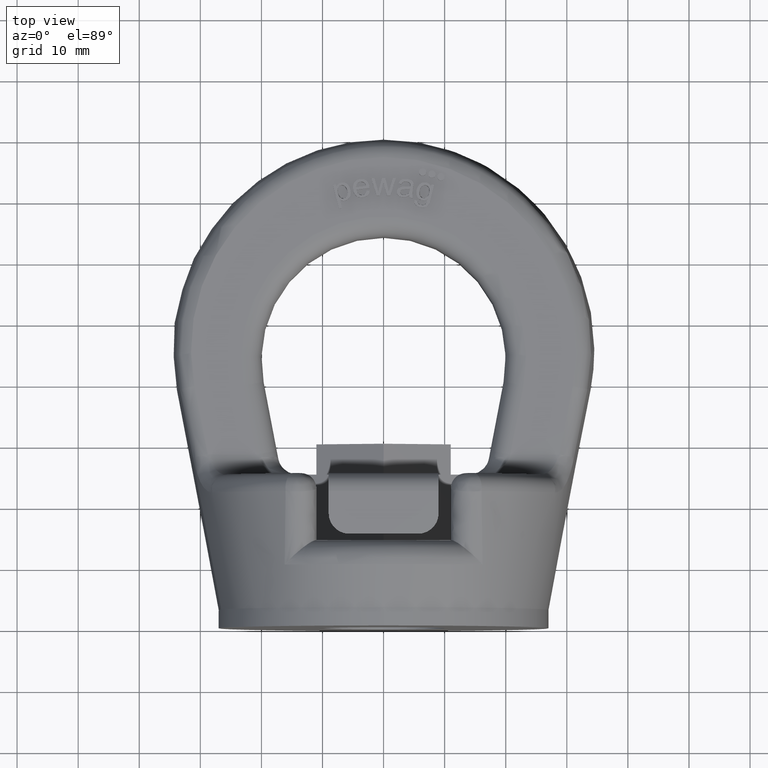
[diagram: clean part render]
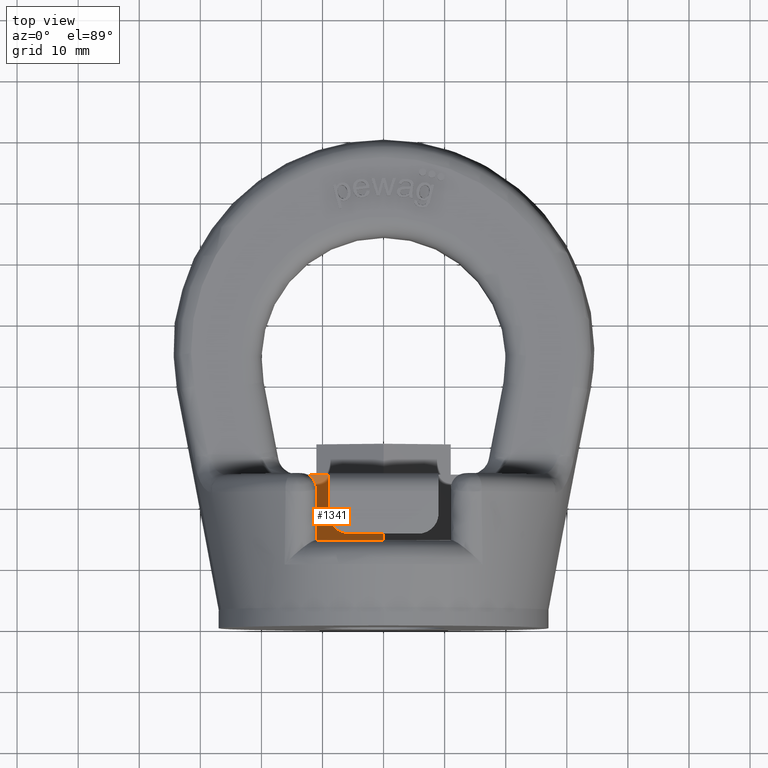
[diagram: same view with one face highlighted and labeled with its STEP entity id]
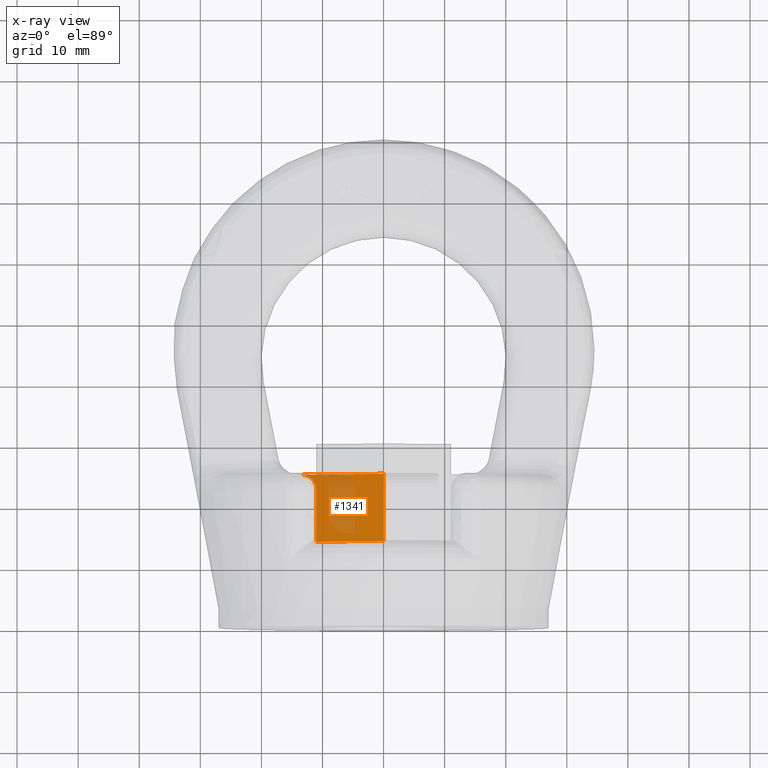
[diagram: x-ray of the same camera — body ghosted, the highlighted face saturated]
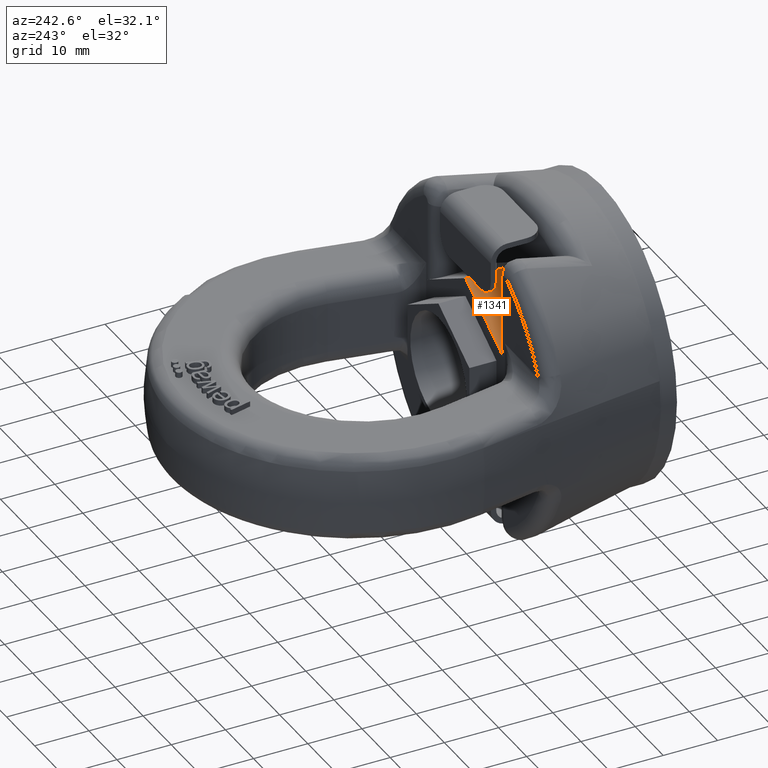
[diagram: same view with one face highlighted and labeled with its STEP entity id]
A machine part, top view. The second image highlights one B-rep face of the part: STEP entity #1341.
The next image is the same camera in x-ray: the body ghosted, the highlighted face saturated — about 32% of this face is hidden behind the body in this view.
A second angle (auxiliary view) of the same face is appended — the face is thin or edge-on in the first view.
In plain terms, the highlighted planar face has unit normal (-0.5, 0, 0.866).
Its self-contained STEP definition (entity closure, byte-faithful):
#1053=ELLIPSE('',#5150,2.88675134594813,2.5);
#1117=FACE_OUTER_BOUND('',#1859,.T.);
#1341=ADVANCED_FACE('',(#1117),#1577,.T.);
#1577=PLANE('',#5151);
#1859=EDGE_LOOP('',(#2869,#2870,#2871,#2872,#2873));
#2131=LINE('',#6530,#2401);
#2136=LINE('',#6561,#2406);
#2152=LINE('',#6792,#2422);
#2178=LINE('',#6889,#2448);
#2401=VECTOR('',#5416,1.);
#2406=VECTOR('',#5425,1.);
#2422=VECTOR('',#5487,1.);
#2448=VECTOR('',#5545,1.);
#2869=ORIENTED_EDGE('',*,*,#4367,.F.);
#2870=ORIENTED_EDGE('',*,*,#4403,.T.);
#2871=ORIENTED_EDGE('',*,*,#4309,.T.);
#2872=ORIENTED_EDGE('',*,*,#4318,.T.);
#2873=ORIENTED_EDGE('',*,*,#4401,.T.);
#3925=VERTEX_POINT('',#6531);
#3926=VERTEX_POINT('',#6532);
#3933=VERTEX_POINT('',#6560);
#3979=VERTEX_POINT('',#6791);
#3980=VERTEX_POINT('',#6793);
#4309=EDGE_CURVE('',#3925,#3926,#2131,.T.);
#4318=EDGE_CURVE('',#3926,#3933,#2136,.T.);
#4367=EDGE_CURVE('',#3979,#3980,#2152,.T.);
#4401=EDGE_CURVE('',#3933,#3980,#2178,.T.);
#4403=EDGE_CURVE('',#3979,#3925,#1053,.T.);
#5150=AXIS2_PLACEMENT_3D('',#6892,#5550,#5551);
#5151=AXIS2_PLACEMENT_3D('',#6893,#5552,#5553);
#5416=DIRECTION('',(0.,-1.,0.));
#5425=DIRECTION('',(0.866025403784439,1.36574054430651E-16,0.499999999999999));
#5487=DIRECTION('',(0.866025403784439,0.,0.499999999999999));
#5545=DIRECTION('',(0.,1.,0.));
#5550=DIRECTION('',(0.499999999999999,0.,-0.866025403784439));
#5551=DIRECTION('',(0.866025403784439,0.,0.499999999999999));
#5552=DIRECTION('',(-0.499999999999999,0.,0.866025403784439));
#5553=DIRECTION('',(0.866025403784439,0.,0.499999999999999));
#6530=CARTESIAN_POINT('',(-11.,25.,9.81495457622363));
#6531=CARTESIAN_POINT('',(-11.,22.5,9.81495457622363));
#6532=CARTESIAN_POINT('',(-11.,14.,9.81495457622363));
#6560=CARTESIAN_POINT('',(-6.50521303491303E-16,14.,16.1658075373095));
#6561=CARTESIAN_POINT('',(1.18283203680972,14.,16.8487159321677));
#6791=CARTESIAN_POINT('',(-13.5,25.,8.37157890324957));
#6792=CARTESIAN_POINT('',(-6.99999999999998,25.,12.1243556529821));
#6793=CARTESIAN_POINT('',(-5.00771532912387E-16,25.,16.1658075373095));
#6889=CARTESIAN_POINT('',(0.,0.300000000000005,16.1658075373095));
#6892=CARTESIAN_POINT('',(-13.5,22.5,8.37157890324957));
#6893=CARTESIAN_POINT('',(-12.5,0.300000000000005,8.9489291724392));